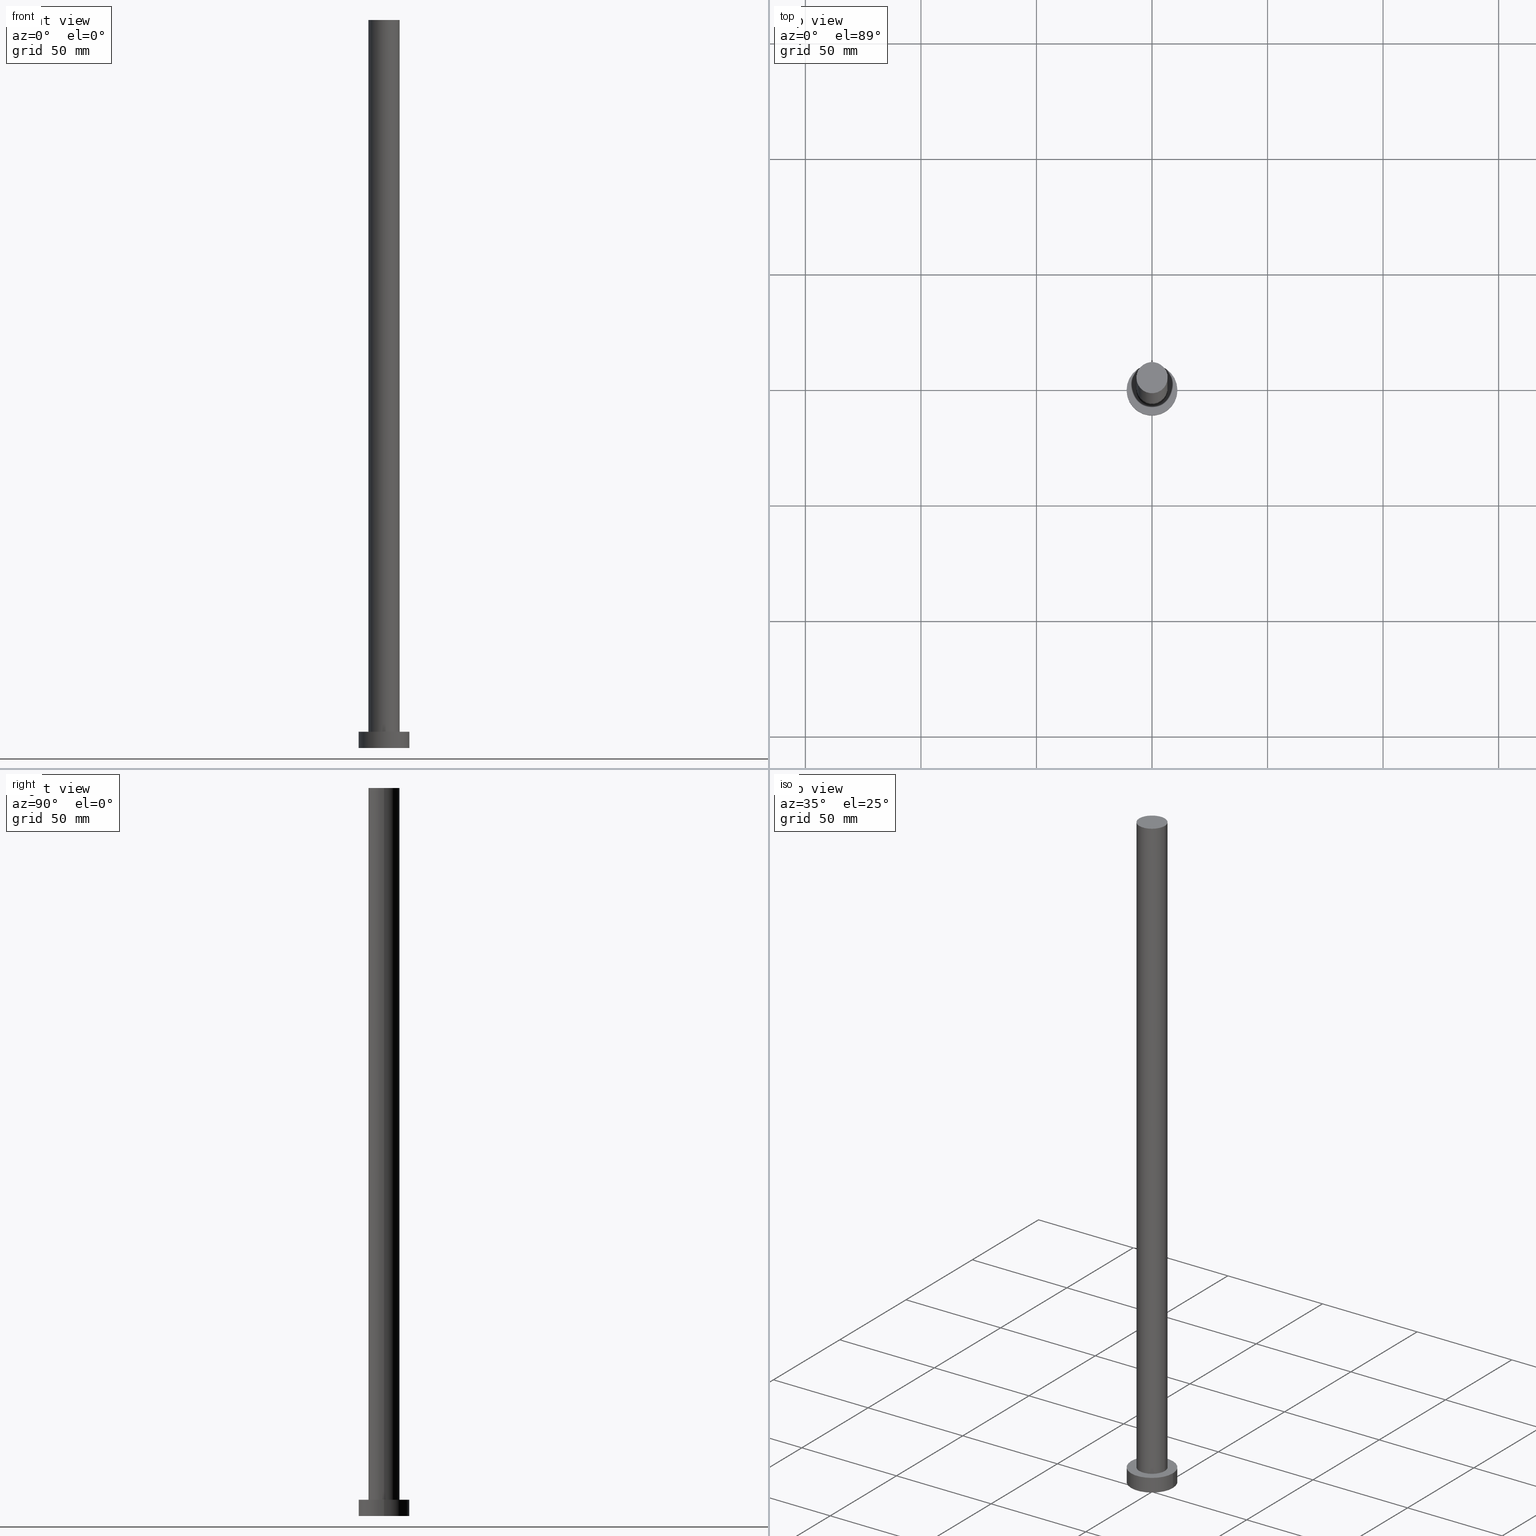
[diagram: canonical four-view strip — front | top / right | iso, engineering-drawing reading convention]
A machine part, canonical four-view strip (front | top / right | iso — engineering-drawing reading convention). The complete STEP part file that produces these views, byte-faithful:
ISO-10303-21;
HEADER;
FILE_DESCRIPTION (( 'STEP AP203' ),
    '1' );
FILE_NAME ('7826.STEP',
    '2023-02-13T11:33:43',
    ( '' ),
    ( '' ),
    'SwSTEP 2.0',
    'SolidWorks 2019',
    '' );
FILE_SCHEMA (( 'CONFIG_CONTROL_DESIGN' ));
ENDSEC;

DATA;
#1 = AXIS2_PLACEMENT_3D ( 'NONE', #100, #255, #63 ) ;
#2 = CARTESIAN_POINT ( 'NONE',  ( 0.000000000000000000, 0.000000000000000000, 0.000000000000000000 ) ) ;
#3 = AXIS2_PLACEMENT_3D ( 'NONE', #2, #114, #152 ) ;
#4 = PERSON_AND_ORGANIZATION ( #204, #85 ) ;
#5 = DIRECTION ( 'NONE',  ( -1.000000000000000000, 0.000000000000000000, 0.000000000000000000 ) ) ;
#6 = CARTESIAN_POINT ( 'NONE',  ( 11.00000000000000000, 1.347111479062088405E-15, 7.000000000000000000 ) ) ;
#7 = DIRECTION ( 'NONE',  ( 1.000000000000000000, 0.000000000000000000, 0.000000000000000000 ) ) ;
#8 = SECURITY_CLASSIFICATION ( '', '', #177 ) ;
#9 = APPROVAL_STATUS ( 'not_yet_approved' ) ;
#10 = CLOSED_SHELL ( 'NONE', ( #157, #32, #113, #69, #17, #251, #243 ) ) ;
#11 = APPROVAL_ROLE ( '' ) ;
#12 = CARTESIAN_POINT ( 'NONE',  ( 6.750000000000000000, 8.266365894244634333E-16, 315.0000000000000000 ) ) ;
#13 = ORIENTED_EDGE ( 'NONE', *, *, #74, .F. ) ;
#14 = SHAPE_DEFINITION_REPRESENTATION ( #181, #229 ) ;
#15 = CC_DESIGN_DATE_AND_TIME_ASSIGNMENT ( #88, #205, ( #8 ) ) ;
#16 = LOCAL_TIME ( 12, 33, 43.00000000000000000, #232 ) ;
#17 = ADVANCED_FACE ( 'NONE', ( #192 ), #149, .F. ) ;
#18 = DIRECTION ( 'NONE',  ( 0.000000000000000000, 0.000000000000000000, 1.000000000000000000 ) ) ;
#19 = DIRECTION ( 'NONE',  ( 1.000000000000000000, 0.000000000000000000, 0.000000000000000000 ) ) ;
#20 = ORIENTED_EDGE ( 'NONE', *, *, #168, .T. ) ;
#21 = DIRECTION ( 'NONE',  ( 0.000000000000000000, 0.000000000000000000, 1.000000000000000000 ) ) ;
#22 = CC_DESIGN_SECURITY_CLASSIFICATION ( #8, ( #225 ) ) ;
#23 = EDGE_CURVE ( 'NONE', #129, #193, #103, .T. ) ;
#24 = CARTESIAN_POINT ( 'NONE',  ( 0.000000000000000000, 0.000000000000000000, 0.000000000000000000 ) ) ;
#25 = DIRECTION ( 'NONE',  ( 1.000000000000000000, 0.000000000000000000, 0.000000000000000000 ) ) ;
#26 = APPROVAL_PERSON_ORGANIZATION ( #179, #167, #163 ) ;
#27 = AXIS2_PLACEMENT_3D ( 'NONE', #144, #28, #5 ) ;
#28 = DIRECTION ( 'NONE',  ( -0.000000000000000000, -0.000000000000000000, -1.000000000000000000 ) ) ;
#29 = APPROVAL_STATUS ( 'not_yet_approved' ) ;
#30 = ORIENTED_EDGE ( 'NONE', *, *, #231, .T. ) ;
#31 = AXIS2_PLACEMENT_3D ( 'NONE', #68, #164, #45 ) ;
#32 = ADVANCED_FACE ( 'NONE', ( #123 ), #233, .T. ) ;
#33 = CARTESIAN_POINT ( 'NONE',  ( -6.750000000000000000, 0.000000000000000000, 7.000000000000000000 ) ) ;
#34 = ORIENTED_EDGE ( 'NONE', *, *, #53, .F. ) ;
#35 = DIRECTION ( 'NONE',  ( 0.000000000000000000, 0.000000000000000000, 1.000000000000000000 ) ) ;
#36 = VERTEX_POINT ( 'NONE', #62 ) ;
#37 = DIRECTION ( 'NONE',  ( 1.000000000000000000, 0.000000000000000000, -0.000000000000000000 ) ) ;
#38 = VECTOR ( 'NONE', #240, 1000.000000000000000 ) ;
#39 = EDGE_LOOP ( 'NONE', ( #201, #252, #202, #107 ) ) ;
#40 =( NAMED_UNIT ( * ) SI_UNIT ( $, .STERADIAN. ) SOLID_ANGLE_UNIT ( ) );
#41 = EDGE_LOOP ( 'NONE', ( #234, #80, #20, #220 ) ) ;
#42 = PERSON_AND_ORGANIZATION_ROLE ( 'creator' ) ;
#43 = DIRECTION ( 'NONE',  ( 0.000000000000000000, 0.000000000000000000, 1.000000000000000000 ) ) ;
#44 = CIRCLE ( 'NONE', #143, 11.00000000000000000 ) ;
#45 = DIRECTION ( 'NONE',  ( 1.000000000000000000, 0.000000000000000000, -0.000000000000000000 ) ) ;
#46 = CIRCLE ( 'NONE', #180, 6.750000000000000000 ) ;
#47 = APPROVAL_STATUS ( 'not_yet_approved' ) ;
#48 = DIRECTION ( 'NONE',  ( -0.000000000000000000, -0.000000000000000000, -1.000000000000000000 ) ) ;
#49 =( LENGTH_UNIT ( ) NAMED_UNIT ( * ) SI_UNIT ( .MILLI., .METRE. ) );
#50 = EDGE_LOOP ( 'NONE', ( #13, #247 ) ) ;
#51 = ORIENTED_EDGE ( 'NONE', *, *, #53, .T. ) ;
#52 = AXIS2_PLACEMENT_3D ( 'NONE', #197, #102, #222 ) ;
#53 = EDGE_CURVE ( 'NONE', #228, #78, #44, .T. ) ;
#54 = CARTESIAN_POINT ( 'NONE',  ( 0.000000000000000000, 0.000000000000000000, 315.0000000000000000 ) ) ;
#55 = CC_DESIGN_APPROVAL ( #76, ( #116 ) ) ;
#56 = CARTESIAN_POINT ( 'NONE',  ( 0.000000000000000000, 0.000000000000000000, 315.0000000000000000 ) ) ;
#57 = ORIENTED_EDGE ( 'NONE', *, *, #196, .F. ) ;
#58 = PLANE ( 'NONE',  #151 ) ;
#59 = LINE ( 'NONE', #136, #38 ) ;
#60 = DIRECTION ( 'NONE',  ( -1.000000000000000000, 0.000000000000000000, 0.000000000000000000 ) ) ;
#61 = PERSON_AND_ORGANIZATION_ROLE ( 'creator' ) ;
#62 = CARTESIAN_POINT ( 'NONE',  ( -6.750000000000000000, 0.000000000000000000, 315.0000000000000000 ) ) ;
#63 = DIRECTION ( 'NONE',  ( -1.000000000000000000, 0.000000000000000000, 0.000000000000000000 ) ) ;
#64 = CARTESIAN_POINT ( 'NONE',  ( 0.000000000000000000, 0.000000000000000000, 7.000000000000000000 ) ) ;
#65 = AXIS2_PLACEMENT_3D ( 'NONE', #64, #194, #25 ) ;
#66 = APPLICATION_PROTOCOL_DEFINITION ( 'international standard', 'config_control_design', 1994, #117 ) ;
#67 = CC_DESIGN_APPROVAL ( #167, ( #225 ) ) ;
#68 = CARTESIAN_POINT ( 'NONE',  ( 0.000000000000000000, 0.000000000000000000, 7.000000000000000000 ) ) ;
#69 = ADVANCED_FACE ( 'NONE', ( #120, #126 ), #200, .T. ) ;
#70 = APPROVAL_DATE_TIME ( #238, #167 ) ;
#71 = LINE ( 'NONE', #146, #130 ) ;
#72 = CIRCLE ( 'NONE', #236, 6.750000000000000000 ) ;
#73 = EDGE_CURVE ( 'NONE', #78, #228, #176, .T. ) ;
#74 = EDGE_CURVE ( 'NONE', #115, #254, #72, .T. ) ;
#75 = AXIS2_PLACEMENT_3D ( 'NONE', #93, #135, #37 ) ;
#76 = APPROVAL ( #47, 'NEUR�EN�' ) ;
#77 = DIRECTION ( 'NONE',  ( 0.000000000000000000, 0.000000000000000000, 1.000000000000000000 ) ) ;
#78 = VERTEX_POINT ( 'NONE', #6 ) ;
#79 = PERSON_AND_ORGANIZATION ( #204, #85 ) ;
#80 = ORIENTED_EDGE ( 'NONE', *, *, #162, .T. ) ;
#81 = DIRECTION ( 'NONE',  ( -0.000000000000000000, -0.000000000000000000, -1.000000000000000000 ) ) ;
#82 = DATE_AND_TIME ( #84, #249 ) ;
#83 = PERSON_AND_ORGANIZATION_ROLE ( 'classification_officer' ) ;
#84 = CALENDAR_DATE ( 2023, 13, 2 ) ;
#85 = ORGANIZATION ( 'NEUR�EN�', 'NEUR�EN�', '' ) ;
#86 = CALENDAR_DATE ( 2023, 13, 2 ) ;
#87 = PRODUCT ( '7826', '7826', '', ( #170 ) ) ;
#88 = DATE_AND_TIME ( #235, #245 ) ;
#89 = AXIS2_PLACEMENT_3D ( 'NONE', #54, #210, #221 ) ;
#90 = COORDINATED_UNIVERSAL_TIME_OFFSET ( 1, 0, .AHEAD. ) ;
#91 = ORIENTED_EDGE ( 'NONE', *, *, #246, .T. ) ;
#92 = CARTESIAN_POINT ( 'NONE',  ( -11.00000000000000000, 0.000000000000000000, 7.000000000000000000 ) ) ;
#93 = CARTESIAN_POINT ( 'NONE',  ( 0.000000000000000000, 0.000000000000000000, 0.000000000000000000 ) ) ;
#94 = EDGE_LOOP ( 'NONE', ( #137, #34, #182, #91 ) ) ;
#95 = CARTESIAN_POINT ( 'NONE',  ( -11.00000000000000000, 0.000000000000000000, 0.000000000000000000 ) ) ;
#96 = APPROVAL_PERSON_ORGANIZATION ( #224, #208, #11 ) ;
#97 = ORIENTED_EDGE ( 'NONE', *, *, #73, .T. ) ;
#98 = EDGE_CURVE ( 'NONE', #36, #115, #71, .T. ) ;
#99 = EDGE_LOOP ( 'NONE', ( #109, #217 ) ) ;
#100 = CARTESIAN_POINT ( 'NONE',  ( 0.000000000000000000, 0.000000000000000000, 315.0000000000000000 ) ) ;
#101 = APPROVAL_PERSON_ORGANIZATION ( #198, #76, #122 ) ;
#102 = DIRECTION ( 'NONE',  ( -0.000000000000000000, -0.000000000000000000, -1.000000000000000000 ) ) ;
#103 = CIRCLE ( 'NONE', #244, 11.00000000000000000 ) ;
#104 = CARTESIAN_POINT ( 'NONE',  ( 0.000000000000000000, 0.000000000000000000, 7.000000000000000000 ) ) ;
#105 = LOCAL_TIME ( 12, 33, 43.00000000000000000, #154 ) ;
#106 = PERSON_AND_ORGANIZATION ( #204, #85 ) ;
#107 = ORIENTED_EDGE ( 'NONE', *, *, #207, .F. ) ;
#108 = AXIS2_PLACEMENT_3D ( 'NONE', #173, #77, #153 ) ;
#109 = ORIENTED_EDGE ( 'NONE', *, *, #246, .F. ) ;
#110 = DATE_AND_TIME ( #242, #237 ) ;
#111 = VECTOR ( 'NONE', #212, 1000.000000000000000 ) ;
#112 =( NAMED_UNIT ( * ) PLANE_ANGLE_UNIT ( ) SI_UNIT ( $, .RADIAN. ) );
#113 = ADVANCED_FACE ( 'NONE', ( #158 ), #160, .T. ) ;
#114 = DIRECTION ( 'NONE',  ( 0.000000000000000000, 0.000000000000000000, 1.000000000000000000 ) ) ;
#115 = VERTEX_POINT ( 'NONE', #33 ) ;
#116 = PRODUCT_DEFINITION ( 'NEZN�M�', '', #225, #133 ) ;
#117 = APPLICATION_CONTEXT ( 'configuration controlled 3d designs of mechanical parts and assemblies' ) ;
#118 = LINE ( 'NONE', #174, #190 ) ;
#119 = PERSON_AND_ORGANIZATION_ROLE ( 'design_supplier' ) ;
#120 = FACE_BOUND ( 'NONE', #50, .T. ) ;
#121 = LINE ( 'NONE', #195, #111 ) ;
#122 = APPROVAL_ROLE ( '' ) ;
#123 = FACE_OUTER_BOUND ( 'NONE', #39, .T. ) ;
#124 = PRODUCT_RELATED_PRODUCT_CATEGORY ( 'detail', '', ( #87 ) ) ;
#125 = DATE_TIME_ROLE ( 'creation_date' ) ;
#126 = FACE_OUTER_BOUND ( 'NONE', #206, .T. ) ;
#127 = PERSON_AND_ORGANIZATION ( #204, #85 ) ;
#128 =( GEOMETRIC_REPRESENTATION_CONTEXT ( 3 ) GLOBAL_UNCERTAINTY_ASSIGNED_CONTEXT ( ( #223 ) ) GLOBAL_UNIT_ASSIGNED_CONTEXT ( ( #49, #112, #40 ) ) REPRESENTATION_CONTEXT ( 'NONE', 'WORKASPACE' ) );
#129 = VERTEX_POINT ( 'NONE', #185 ) ;
#130 = VECTOR ( 'NONE', #48, 1000.000000000000000 ) ;
#131 = CC_DESIGN_APPROVAL ( #208, ( #8 ) ) ;
#132 = EDGE_CURVE ( 'NONE', #78, #129, #118, .T. ) ;
#133 = DESIGN_CONTEXT ( 'detailed design', #117, 'design' ) ;
#134 = AXIS2_PLACEMENT_3D ( 'NONE', #56, #81, #60 ) ;
#135 = DIRECTION ( 'NONE',  ( 0.000000000000000000, 0.000000000000000000, 1.000000000000000000 ) ) ;
#136 = CARTESIAN_POINT ( 'NONE',  ( -11.00000000000000000, 0.000000000000000000, 7.000000000000000000 ) ) ;
#137 = ORIENTED_EDGE ( 'NONE', *, *, #132, .F. ) ;
#138 = CARTESIAN_POINT ( 'NONE',  ( 6.750000000000000000, 8.266365894244634333E-16, 7.000000000000000000 ) ) ;
#139 = DIRECTION ( 'NONE',  ( -0.000000000000000000, -0.000000000000000000, -1.000000000000000000 ) ) ;
#140 = CARTESIAN_POINT ( 'NONE',  ( 0.000000000000000000, 0.000000000000000000, 315.0000000000000000 ) ) ;
#141 = PERSON_AND_ORGANIZATION ( #204, #85 ) ;
#142 = CARTESIAN_POINT ( 'NONE',  ( 0.000000000000000000, 0.000000000000000000, 7.000000000000000000 ) ) ;
#143 = AXIS2_PLACEMENT_3D ( 'NONE', #104, #43, #7 ) ;
#144 = CARTESIAN_POINT ( 'NONE',  ( 0.000000000000000000, 0.000000000000000000, 7.000000000000000000 ) ) ;
#145 = CALENDAR_DATE ( 2023, 13, 2 ) ;
#146 = CARTESIAN_POINT ( 'NONE',  ( -6.750000000000000000, 0.000000000000000000, 315.0000000000000000 ) ) ;
#147 = MANIFOLD_SOLID_BREP ( 'P�idat vysunut�m3', #10 ) ;
#148 = CC_DESIGN_DATE_AND_TIME_ASSIGNMENT ( #161, #125, ( #116 ) ) ;
#149 = PLANE ( 'NONE',  #75 ) ;
#150 = CC_DESIGN_PERSON_AND_ORGANIZATION_ASSIGNMENT ( #106, #61, ( #225 ) ) ;
#151 = AXIS2_PLACEMENT_3D ( 'NONE', #140, #21, #216 ) ;
#152 = DIRECTION ( 'NONE',  ( 1.000000000000000000, 0.000000000000000000, 0.000000000000000000 ) ) ;
#153 = DIRECTION ( 'NONE',  ( 1.000000000000000000, 0.000000000000000000, 0.000000000000000000 ) ) ;
#154 = COORDINATED_UNIVERSAL_TIME_OFFSET ( 1, 0, .AHEAD. ) ;
#155 = DIRECTION ( 'NONE',  ( 1.000000000000000000, 0.000000000000000000, 0.000000000000000000 ) ) ;
#156 = COORDINATED_UNIVERSAL_TIME_OFFSET ( 1, 0, .AHEAD. ) ;
#157 = ADVANCED_FACE ( 'NONE', ( #215 ), #189, .T. ) ;
#158 = FACE_OUTER_BOUND ( 'NONE', #94, .T. ) ;
#159 = CC_DESIGN_PERSON_AND_ORGANIZATION_ASSIGNMENT ( #4, #83, ( #8 ) ) ;
#160 = CYLINDRICAL_SURFACE ( 'NONE', #52, 11.00000000000000000 ) ;
#161 = DATE_AND_TIME ( #86, #105 ) ;
#162 = EDGE_CURVE ( 'NONE', #241, #254, #121, .T. ) ;
#163 = APPROVAL_ROLE ( '' ) ;
#164 = DIRECTION ( 'NONE',  ( 0.000000000000000000, 0.000000000000000000, 1.000000000000000000 ) ) ;
#165 = AXIS2_PLACEMENT_3D ( 'NONE', #171, #250, #253 ) ;
#166 = FACE_OUTER_BOUND ( 'NONE', #184, .T. ) ;
#167 = APPROVAL ( #9, 'NEUR�EN�' ) ;
#168 = EDGE_CURVE ( 'NONE', #254, #115, #46, .T. ) ;
#169 = ORIENTED_EDGE ( 'NONE', *, *, #162, .F. ) ;
#170 = MECHANICAL_CONTEXT ( 'NONE', #214, 'mechanical' ) ;
#171 = CARTESIAN_POINT ( 'NONE',  ( 0.000000000000000000, 0.000000000000000000, 315.0000000000000000 ) ) ;
#172 = PERSON_AND_ORGANIZATION_ROLE ( 'design_owner' ) ;
#173 = CARTESIAN_POINT ( 'NONE',  ( 0.000000000000000000, 0.000000000000000000, 0.000000000000000000 ) ) ;
#174 = CARTESIAN_POINT ( 'NONE',  ( 11.00000000000000000, 1.347111479062088405E-15, 7.000000000000000000 ) ) ;
#175 = CYLINDRICAL_SURFACE ( 'NONE', #134, 6.750000000000000000 ) ;
#176 = CIRCLE ( 'NONE', #65, 11.00000000000000000 ) ;
#177 = SECURITY_CLASSIFICATION_LEVEL ( 'unclassified' ) ;
#178 = COORDINATED_UNIVERSAL_TIME_OFFSET ( 1, 0, .AHEAD. ) ;
#179 = PERSON_AND_ORGANIZATION ( #204, #85 ) ;
#180 = AXIS2_PLACEMENT_3D ( 'NONE', #227, #35, #19 ) ;
#181 = PRODUCT_DEFINITION_SHAPE ( 'NONE', 'NONE',  #116 ) ;
#182 = ORIENTED_EDGE ( 'NONE', *, *, #207, .T. ) ;
#183 = CIRCLE ( 'NONE', #108, 11.00000000000000000 ) ;
#184 = EDGE_LOOP ( 'NONE', ( #248, #30 ) ) ;
#185 = CARTESIAN_POINT ( 'NONE',  ( 11.00000000000000000, 1.347111479062088405E-15, 0.000000000000000000 ) ) ;
#186 = APPROVAL_DATE_TIME ( #110, #208 ) ;
#187 = FACE_OUTER_BOUND ( 'NONE', #188, .T. ) ;
#188 = EDGE_LOOP ( 'NONE', ( #169, #57, #226, #209 ) ) ;
#189 = CYLINDRICAL_SURFACE ( 'NONE', #1, 6.750000000000000000 ) ;
#190 = VECTOR ( 'NONE', #139, 1000.000000000000000 ) ;
#191 = CC_DESIGN_PERSON_AND_ORGANIZATION_ASSIGNMENT ( #79, #172, ( #87 ) ) ;
#192 = FACE_OUTER_BOUND ( 'NONE', #99, .T. ) ;
#193 = VERTEX_POINT ( 'NONE', #95 ) ;
#194 = DIRECTION ( 'NONE',  ( 0.000000000000000000, 0.000000000000000000, 1.000000000000000000 ) ) ;
#195 = CARTESIAN_POINT ( 'NONE',  ( 6.750000000000000000, 8.266365894244634333E-16, 315.0000000000000000 ) ) ;
#196 = EDGE_CURVE ( 'NONE', #36, #241, #211, .T. ) ;
#197 = CARTESIAN_POINT ( 'NONE',  ( 0.000000000000000000, 0.000000000000000000, 7.000000000000000000 ) ) ;
#198 = PERSON_AND_ORGANIZATION ( #204, #85 ) ;
#199 = CC_DESIGN_PERSON_AND_ORGANIZATION_ASSIGNMENT ( #127, #42, ( #116 ) ) ;
#200 = PLANE ( 'NONE',  #31 ) ;
#201 = ORIENTED_EDGE ( 'NONE', *, *, #73, .F. ) ;
#202 = ORIENTED_EDGE ( 'NONE', *, *, #23, .T. ) ;
#203 = CC_DESIGN_PERSON_AND_ORGANIZATION_ASSIGNMENT ( #141, #119, ( #225 ) ) ;
#204 = PERSON ( 'NEUR�EN�', 'NEUR�EN�', 'NEUR�EN�', ('NEUR�EN�'), ('NEUR�EN�'), ('NEUR�EN�') ) ;
#205 = DATE_TIME_ROLE ( 'classification_date' ) ;
#206 = EDGE_LOOP ( 'NONE', ( #51, #97 ) ) ;
#207 = EDGE_CURVE ( 'NONE', #228, #193, #59, .T. ) ;
#208 = APPROVAL ( #29, 'NEUR�EN�' ) ;
#209 = ORIENTED_EDGE ( 'NONE', *, *, #74, .T. ) ;
#210 = DIRECTION ( 'NONE',  ( 0.000000000000000000, 0.000000000000000000, 1.000000000000000000 ) ) ;
#211 = CIRCLE ( 'NONE', #165, 6.750000000000000000 ) ;
#212 = DIRECTION ( 'NONE',  ( -0.000000000000000000, -0.000000000000000000, -1.000000000000000000 ) ) ;
#213 = APPLICATION_PROTOCOL_DEFINITION ( 'international standard', 'config_control_design', 1994, #214 ) ;
#214 = APPLICATION_CONTEXT ( 'configuration controlled 3d designs of mechanical parts and assemblies' ) ;
#215 = FACE_OUTER_BOUND ( 'NONE', #41, .T. ) ;
#216 = DIRECTION ( 'NONE',  ( 1.000000000000000000, 0.000000000000000000, -0.000000000000000000 ) ) ;
#217 = ORIENTED_EDGE ( 'NONE', *, *, #23, .F. ) ;
#218 = APPROVAL_DATE_TIME ( #82, #76 ) ;
#219 = DIRECTION ( 'NONE',  ( 1.000000000000000000, 0.000000000000000000, 0.000000000000000000 ) ) ;
#220 = ORIENTED_EDGE ( 'NONE', *, *, #98, .F. ) ;
#221 = DIRECTION ( 'NONE',  ( 1.000000000000000000, 0.000000000000000000, 0.000000000000000000 ) ) ;
#222 = DIRECTION ( 'NONE',  ( -1.000000000000000000, 0.000000000000000000, 0.000000000000000000 ) ) ;
#223 = UNCERTAINTY_MEASURE_WITH_UNIT (LENGTH_MEASURE( 1.000000000000000082E-05 ), #49, 'distance_accuracy_value', 'NONE');
#224 = PERSON_AND_ORGANIZATION ( #204, #85 ) ;
#225 = PRODUCT_DEFINITION_FORMATION_WITH_SPECIFIED_SOURCE ( 'LIBOVOLN�', '', #87, .NOT_KNOWN. ) ;
#226 = ORIENTED_EDGE ( 'NONE', *, *, #98, .T. ) ;
#227 = CARTESIAN_POINT ( 'NONE',  ( 0.000000000000000000, 0.000000000000000000, 7.000000000000000000 ) ) ;
#228 = VERTEX_POINT ( 'NONE', #92 ) ;
#229 = ADVANCED_BREP_SHAPE_REPRESENTATION ( '7826', ( #147, #3 ), #128 ) ;
#230 = CIRCLE ( 'NONE', #89, 6.750000000000000000 ) ;
#231 = EDGE_CURVE ( 'NONE', #241, #36, #230, .T. ) ;
#232 = COORDINATED_UNIVERSAL_TIME_OFFSET ( 1, 0, .AHEAD. ) ;
#233 = CYLINDRICAL_SURFACE ( 'NONE', #27, 11.00000000000000000 ) ;
#234 = ORIENTED_EDGE ( 'NONE', *, *, #231, .F. ) ;
#235 = CALENDAR_DATE ( 2023, 13, 2 ) ;
#236 = AXIS2_PLACEMENT_3D ( 'NONE', #142, #239, #219 ) ;
#237 = LOCAL_TIME ( 12, 33, 43.00000000000000000, #90 ) ;
#238 = DATE_AND_TIME ( #145, #16 ) ;
#239 = DIRECTION ( 'NONE',  ( 0.000000000000000000, 0.000000000000000000, 1.000000000000000000 ) ) ;
#240 = DIRECTION ( 'NONE',  ( -0.000000000000000000, -0.000000000000000000, -1.000000000000000000 ) ) ;
#241 = VERTEX_POINT ( 'NONE', #12 ) ;
#242 = CALENDAR_DATE ( 2023, 13, 2 ) ;
#243 = ADVANCED_FACE ( 'NONE', ( #166 ), #58, .T. ) ;
#244 = AXIS2_PLACEMENT_3D ( 'NONE', #24, #18, #155 ) ;
#245 = LOCAL_TIME ( 12, 33, 43.00000000000000000, #156 ) ;
#246 = EDGE_CURVE ( 'NONE', #193, #129, #183, .T. ) ;
#247 = ORIENTED_EDGE ( 'NONE', *, *, #168, .F. ) ;
#248 = ORIENTED_EDGE ( 'NONE', *, *, #196, .T. ) ;
#249 = LOCAL_TIME ( 12, 33, 43.00000000000000000, #178 ) ;
#250 = DIRECTION ( 'NONE',  ( 0.000000000000000000, 0.000000000000000000, 1.000000000000000000 ) ) ;
#251 = ADVANCED_FACE ( 'NONE', ( #187 ), #175, .T. ) ;
#252 = ORIENTED_EDGE ( 'NONE', *, *, #132, .T. ) ;
#253 = DIRECTION ( 'NONE',  ( 1.000000000000000000, 0.000000000000000000, 0.000000000000000000 ) ) ;
#254 = VERTEX_POINT ( 'NONE', #138 ) ;
#255 = DIRECTION ( 'NONE',  ( -0.000000000000000000, -0.000000000000000000, -1.000000000000000000 ) ) ;
ENDSEC;
END-ISO-10303-21;
